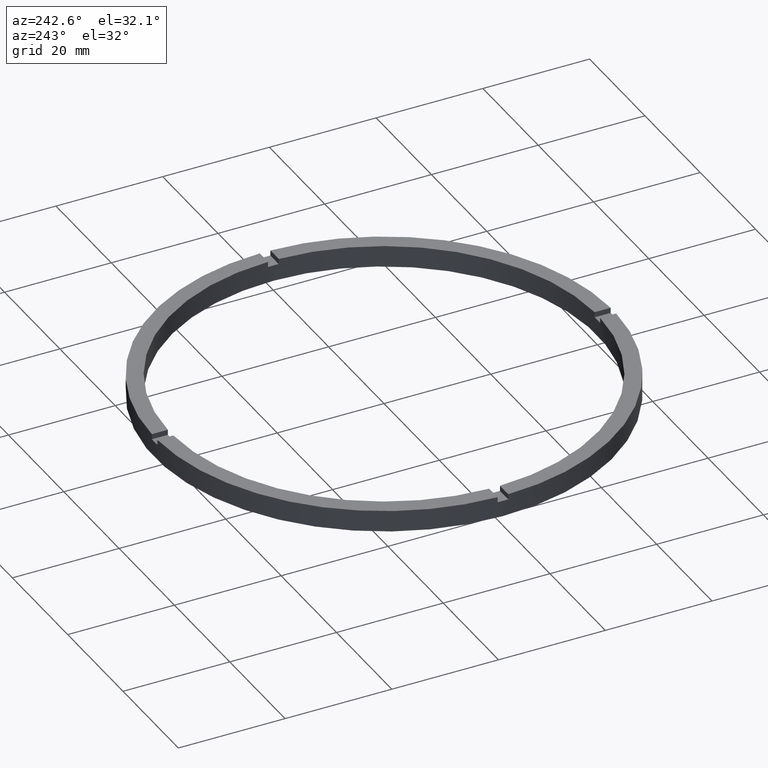
[diagram: clean part render]
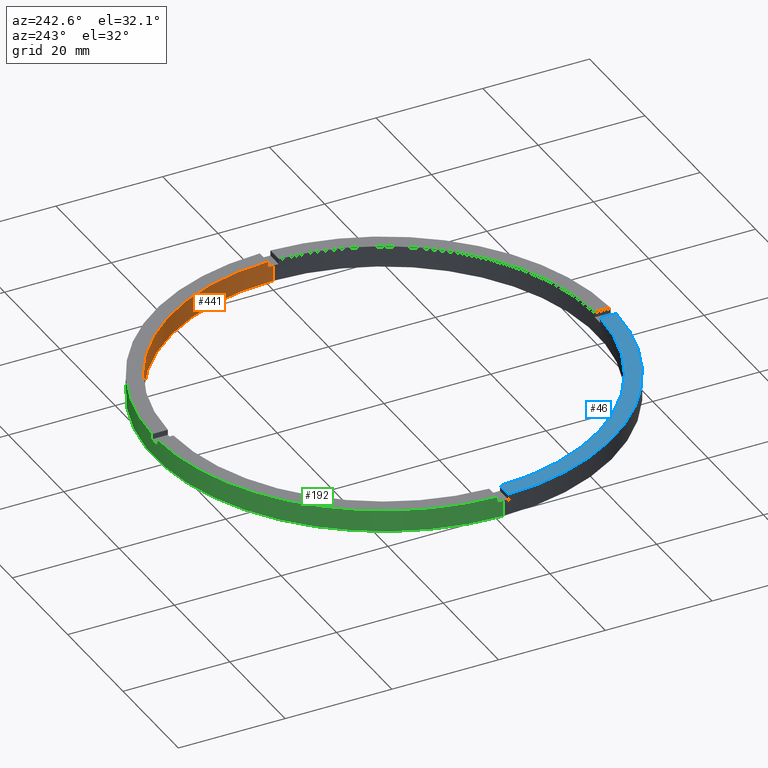
[diagram: same view with three faces highlighted in distinct colors, each labeled with its STEP entity id]
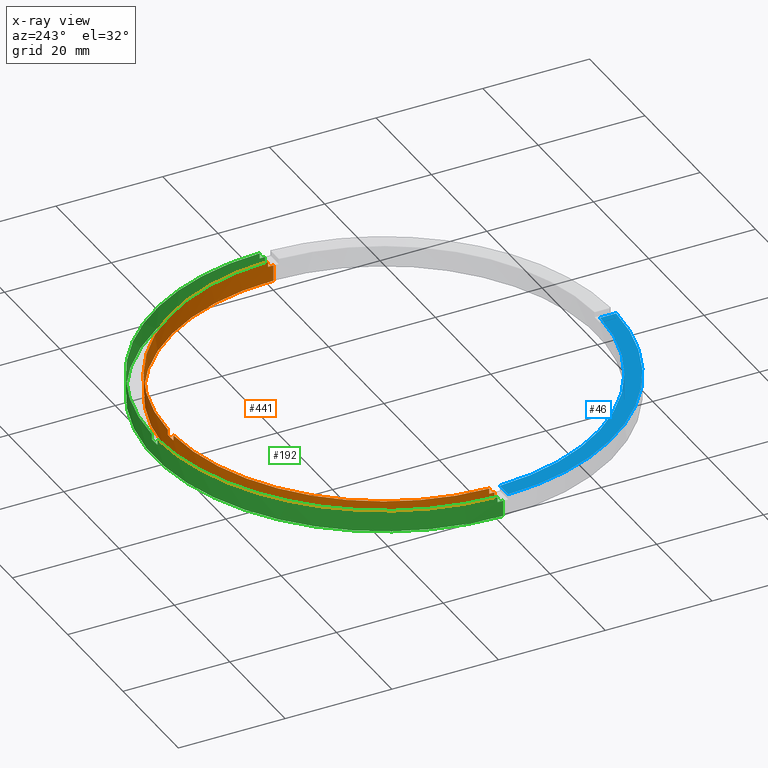
[diagram: x-ray of the same camera — body ghosted, the three highlighted faces saturated]
A machine part, auxiliary view with three faces highlighted in distinct colors.
The next image is the same camera in x-ray (body ghosted, the three faces saturated) — at least one of them is partly hidden behind the body in this view.
Their STEP definitions:

[orange] entity #441 — the highlighted cylindrical surface (partial cylindrical patch) has radius 40 mm, axis along (-0, -0, -1).
#8 = ORIENTED_EDGE ( 'NONE', *, *, #49, .T. ) ;
#19 = CIRCLE ( 'NONE', #274, 40.00000000000000000 ) ;
#32 = AXIS2_PLACEMENT_3D ( 'NONE', #557, #453, #159 ) ;
#41 = VERTEX_POINT ( 'NONE', #431 ) ;
#49 = EDGE_CURVE ( 'NONE', #522, #262, #579, .T. ) ;
#52 = DIRECTION ( 'NONE',  ( 0.000000000000000000, 0.000000000000000000, 1.000000000000000000 ) ) ;
#81 = LINE ( 'NONE', #83, #332 ) ;
#83 = CARTESIAN_POINT ( 'NONE',  ( -40.00000000000000000, 0.000000000000000000, 4.000000000000000000 ) ) ;
#89 = CARTESIAN_POINT ( 'NONE',  ( 39.98749804626441318, 0.9999999999998432365, 4.000000000000000000 ) ) ;
#93 = VERTEX_POINT ( 'NONE', #637 ) ;
#95 = ORIENTED_EDGE ( 'NONE', *, *, #485, .T. ) ;
#104 = DIRECTION ( 'NONE',  ( 0.000000000000000000, 0.000000000000000000, 1.000000000000000000 ) ) ;
#114 = EDGE_CURVE ( 'NONE', #209, #516, #81, .T. ) ;
#118 = DIRECTION ( 'NONE',  ( 0.000000000000000000, -0.000000000000000000, 1.000000000000000000 ) ) ;
#123 = DIRECTION ( 'NONE',  ( -0.000000000000000000, -0.000000000000000000, -1.000000000000000000 ) ) ;
#128 = LINE ( 'NONE', #518, #129 ) ;
#129 = VECTOR ( 'NONE', #104, 1000.000000000000000 ) ;
#142 = EDGE_CURVE ( 'NONE', #538, #178, #558, .T. ) ;
#151 = DIRECTION ( 'NONE',  ( 0.000000000000000000, 0.000000000000000000, 1.000000000000000000 ) ) ;
#155 = EDGE_CURVE ( 'NONE', #520, #209, #575, .T. ) ;
#156 = CARTESIAN_POINT ( 'NONE',  ( -39.98749804626441318, 0.9999999999999713562, 4.000000000000000000 ) ) ;
#159 = DIRECTION ( 'NONE',  ( 1.000000000000000000, 0.000000000000000000, 0.000000000000000000 ) ) ;
#169 = DIRECTION ( 'NONE',  ( -0.000000000000000000, -0.000000000000000000, -1.000000000000000000 ) ) ;
#175 = EDGE_CURVE ( 'NONE', #202, #517, #565, .T. ) ;
#178 = VERTEX_POINT ( 'NONE', #184 ) ;
#183 = VERTEX_POINT ( 'NONE', #503 ) ;
#184 = CARTESIAN_POINT ( 'NONE',  ( 40.00000000000000000, 4.898587196589413026E-15, 0.000000000000000000 ) ) ;
#186 = CARTESIAN_POINT ( 'NONE',  ( -40.00000000000000000, 0.000000000000000000, 0.000000000000000000 ) ) ;
#194 = CIRCLE ( 'NONE', #740, 40.00000000000000000 ) ;
#197 = ORIENTED_EDGE ( 'NONE', *, *, #114, .T. ) ;
#202 = VERTEX_POINT ( 'NONE', #648 ) ;
#209 = VERTEX_POINT ( 'NONE', #281 ) ;
#242 = EDGE_CURVE ( 'NONE', #202, #93, #19, .T. ) ;
#255 = AXIS2_PLACEMENT_3D ( 'NONE', #323, #427, #566 ) ;
#262 = VERTEX_POINT ( 'NONE', #156 ) ;
#274 = AXIS2_PLACEMENT_3D ( 'NONE', #721, #118, #589 ) ;
#281 = CARTESIAN_POINT ( 'NONE',  ( -40.00000000000000000, 0.000000000000000000, 3.000000000000000000 ) ) ;
#289 = CARTESIAN_POINT ( 'NONE',  ( 0.000000000000000000, 0.000000000000000000, 3.000000000000000000 ) ) ;
#297 = CYLINDRICAL_SURFACE ( 'NONE', #255, 40.00000000000000000 ) ;
#300 = LINE ( 'NONE', #89, #303 ) ;
#303 = VECTOR ( 'NONE', #169, 1000.000000000000000 ) ;
#307 = CARTESIAN_POINT ( 'NONE',  ( 0.000000000000000000, 0.000000000000000000, 4.000000000000000000 ) ) ;
#320 = AXIS2_PLACEMENT_3D ( 'NONE', #307, #419, #467 ) ;
#323 = CARTESIAN_POINT ( 'NONE',  ( 0.000000000000000000, 0.000000000000000000, 4.000000000000000000 ) ) ;
#332 = VECTOR ( 'NONE', #123, 1000.000000000000000 ) ;
#351 = EDGE_CURVE ( 'NONE', #41, #517, #592, .T. ) ;
#355 = CARTESIAN_POINT ( 'NONE',  ( 0.9999999999999740208, 39.98749804626441318, 4.000000000000000000 ) ) ;
#361 = DIRECTION ( 'NONE',  ( 1.000000000000000000, 0.000000000000000000, 0.000000000000000000 ) ) ;
#365 = CARTESIAN_POINT ( 'NONE',  ( -1.000000000000025979, 39.98749804626441318, 4.000000000000000000 ) ) ;
#374 = DIRECTION ( 'NONE',  ( 1.000000000000000000, 0.000000000000000000, 0.000000000000000000 ) ) ;
#376 = ORIENTED_EDGE ( 'NONE', *, *, #175, .F. ) ;
#379 = CARTESIAN_POINT ( 'NONE',  ( 0.000000000000000000, 0.000000000000000000, 0.000000000000000000 ) ) ;
#395 = DIRECTION ( 'NONE',  ( 1.000000000000000000, 0.000000000000000000, 0.000000000000000000 ) ) ;
#410 = CARTESIAN_POINT ( 'NONE',  ( 40.00000000000000000, 4.898587196589413026E-15, 3.000000000000000000 ) ) ;
#419 = DIRECTION ( 'NONE',  ( 0.000000000000000000, 0.000000000000000000, 1.000000000000000000 ) ) ;
#422 = DIRECTION ( 'NONE',  ( 0.000000000000000000, 0.000000000000000000, 1.000000000000000000 ) ) ;
#427 = DIRECTION ( 'NONE',  ( -0.000000000000000000, -0.000000000000000000, -1.000000000000000000 ) ) ;
#431 = CARTESIAN_POINT ( 'NONE',  ( 39.98749804626441318, 0.9999999999998432365, 4.000000000000000000 ) ) ;
#434 = AXIS2_PLACEMENT_3D ( 'NONE', #673, #580, #395 ) ;
#441 = ADVANCED_FACE ( 'NONE', ( #568 ), #297, .F. ) ;
#443 = EDGE_CURVE ( 'NONE', #41, #183, #300, .T. ) ;
#453 = DIRECTION ( 'NONE',  ( 0.000000000000000000, 0.000000000000000000, 1.000000000000000000 ) ) ;
#463 = ORIENTED_EDGE ( 'NONE', *, *, #242, .T. ) ;
#467 = DIRECTION ( 'NONE',  ( 1.000000000000000000, 0.000000000000000000, 0.000000000000000000 ) ) ;
#481 = ORIENTED_EDGE ( 'NONE', *, *, #142, .F. ) ;
#485 = EDGE_CURVE ( 'NONE', #538, #183, #194, .T. ) ;
#503 = CARTESIAN_POINT ( 'NONE',  ( 39.98749804626441318, 0.9999999999998432365, 3.000000000000000000 ) ) ;
#516 = VERTEX_POINT ( 'NONE', #186 ) ;
#517 = VERTEX_POINT ( 'NONE', #355 ) ;
#518 = CARTESIAN_POINT ( 'NONE',  ( -39.98749804626441318, 0.9999999999999713562, 4.000000000000000000 ) ) ;
#520 = VERTEX_POINT ( 'NONE', #618 ) ;
#522 = VERTEX_POINT ( 'NONE', #365 ) ;
#525 = CARTESIAN_POINT ( 'NONE',  ( 0.9999999999999740208, 39.98749804626441318, 4.000000000000000000 ) ) ;
#538 = VERTEX_POINT ( 'NONE', #410 ) ;
#539 = ORIENTED_EDGE ( 'NONE', *, *, #443, .F. ) ;
#553 = VECTOR ( 'NONE', #151, 1000.000000000000000 ) ;
#557 = CARTESIAN_POINT ( 'NONE',  ( 0.000000000000000000, 0.000000000000000000, 3.000000000000000000 ) ) ;
#558 = LINE ( 'NONE', #753, #563 ) ;
#563 = VECTOR ( 'NONE', #764, 1000.000000000000000 ) ;
#565 = LINE ( 'NONE', #525, #553 ) ;
#566 = DIRECTION ( 'NONE',  ( -1.000000000000000000, 0.000000000000000000, 0.000000000000000000 ) ) ;
#568 = FACE_OUTER_BOUND ( 'NONE', #629, .T. ) ;
#575 = CIRCLE ( 'NONE', #32, 40.00000000000000000 ) ;
#576 = CIRCLE ( 'NONE', #604, 40.00000000000000000 ) ;
#579 = CIRCLE ( 'NONE', #434, 40.00000000000000000 ) ;
#580 = DIRECTION ( 'NONE',  ( 0.000000000000000000, 0.000000000000000000, 1.000000000000000000 ) ) ;
#589 = DIRECTION ( 'NONE',  ( 1.000000000000000000, 0.000000000000000000, 0.000000000000000000 ) ) ;
#592 = CIRCLE ( 'NONE', #320, 40.00000000000000000 ) ;
#604 = AXIS2_PLACEMENT_3D ( 'NONE', #379, #422, #361 ) ;
#618 = CARTESIAN_POINT ( 'NONE',  ( -39.98749804626441318, 0.9999999999999713562, 3.000000000000000000 ) ) ;
#626 = ORIENTED_EDGE ( 'NONE', *, *, #666, .F. ) ;
#629 = EDGE_LOOP ( 'NONE', ( #481, #95, #539, #716, #376, #463, #712, #8, #626, #709, #197, #768 ) ) ;
#634 = EDGE_CURVE ( 'NONE', #178, #516, #576, .T. ) ;
#637 = CARTESIAN_POINT ( 'NONE',  ( -1.000000000000025979, 39.98749804626441318, 3.000000000000000000 ) ) ;
#642 = DIRECTION ( 'NONE',  ( -0.000000000000000000, -0.000000000000000000, -1.000000000000000000 ) ) ;
#648 = CARTESIAN_POINT ( 'NONE',  ( 0.9999999999999740208, 39.98749804626441318, 3.000000000000000000 ) ) ;
#666 = EDGE_CURVE ( 'NONE', #520, #262, #128, .T. ) ;
#673 = CARTESIAN_POINT ( 'NONE',  ( 0.000000000000000000, 0.000000000000000000, 4.000000000000000000 ) ) ;
#680 = EDGE_CURVE ( 'NONE', #522, #93, #733, .T. ) ;
#709 = ORIENTED_EDGE ( 'NONE', *, *, #155, .T. ) ;
#712 = ORIENTED_EDGE ( 'NONE', *, *, #680, .F. ) ;
#715 = CARTESIAN_POINT ( 'NONE',  ( -1.000000000000025979, 39.98749804626441318, 4.000000000000000000 ) ) ;
#716 = ORIENTED_EDGE ( 'NONE', *, *, #351, .T. ) ;
#721 = CARTESIAN_POINT ( 'NONE',  ( 0.000000000000000000, 0.000000000000000000, 3.000000000000000000 ) ) ;
#733 = LINE ( 'NONE', #715, #755 ) ;
#740 = AXIS2_PLACEMENT_3D ( 'NONE', #289, #52, #374 ) ;
#753 = CARTESIAN_POINT ( 'NONE',  ( 40.00000000000000000, 4.898587196589413026E-15, 4.000000000000000000 ) ) ;
#755 = VECTOR ( 'NONE', #642, 1000.000000000000000 ) ;
#764 = DIRECTION ( 'NONE',  ( -0.000000000000000000, -0.000000000000000000, -1.000000000000000000 ) ) ;
#768 = ORIENTED_EDGE ( 'NONE', *, *, #634, .F. ) ;

[blue] entity #46 — the highlighted planar face has unit normal (0, 0, 1).
#4 = VERTEX_POINT ( 'NONE', #494 ) ;
#44 = FACE_OUTER_BOUND ( 'NONE', #283, .T. ) ;
#46 = ADVANCED_FACE ( 'NONE', ( #44 ), #264, .T. ) ;
#47 = DIRECTION ( 'NONE',  ( 0.000000000000000000, 0.000000000000000000, 1.000000000000000000 ) ) ;
#62 = DIRECTION ( 'NONE',  ( 0.000000000000000000, 0.000000000000000000, 1.000000000000000000 ) ) ;
#85 = EDGE_CURVE ( 'NONE', #4, #773, #608, .T. ) ;
#97 = ORIENTED_EDGE ( 'NONE', *, *, #552, .F. ) ;
#112 = DIRECTION ( 'NONE',  ( 1.000000000000000000, 0.000000000000000000, 0.000000000000000000 ) ) ;
#137 = DIRECTION ( 'NONE',  ( 1.000000000000000000, 0.000000000000000000, -0.000000000000000000 ) ) ;
#154 = DIRECTION ( 'NONE',  ( 1.000000000000000000, 0.000000000000000000, 0.000000000000000000 ) ) ;
#177 = CARTESIAN_POINT ( 'NONE',  ( -1.000000000000158984, -39.98749804626440607, 4.000000000000000000 ) ) ;
#190 = VERTEX_POINT ( 'NONE', #688 ) ;
#239 = VERTEX_POINT ( 'NONE', #350 ) ;
#257 = AXIS2_PLACEMENT_3D ( 'NONE', #649, #47, #112 ) ;
#264 = PLANE ( 'NONE',  #744 ) ;
#283 = EDGE_LOOP ( 'NONE', ( #551, #746, #97, #492 ) ) ;
#339 = DIRECTION ( 'NONE',  ( 0.000000000000000000, 0.000000000000000000, 1.000000000000000000 ) ) ;
#350 = CARTESIAN_POINT ( 'NONE',  ( -42.98837052040933315, -1.000000000000029310, 4.000000000000000000 ) ) ;
#357 = CARTESIAN_POINT ( 'NONE',  ( -1.000000000000159872, -33.00000000000016342, 4.000000000000000000 ) ) ;
#465 = VECTOR ( 'NONE', #651, 1000.000000000000000 ) ;
#484 = LINE ( 'NONE', #357, #741 ) ;
#492 = ORIENTED_EDGE ( 'NONE', *, *, #627, .T. ) ;
#494 = CARTESIAN_POINT ( 'NONE',  ( -39.98749804626441318, -1.000000000000028644, 4.000000000000000000 ) ) ;
#531 = DIRECTION ( 'NONE',  ( 1.301042606982605074E-16, -1.000000000000000000, 0.000000000000000000 ) ) ;
#551 = ORIENTED_EDGE ( 'NONE', *, *, #706, .F. ) ;
#552 = EDGE_CURVE ( 'NONE', #239, #4, #707, .T. ) ;
#560 = CIRCLE ( 'NONE', #694, 42.99999999999998579 ) ;
#608 = CIRCLE ( 'NONE', #257, 40.00000000000000000 ) ;
#627 = EDGE_CURVE ( 'NONE', #239, #190, #560, .T. ) ;
#641 = CARTESIAN_POINT ( 'NONE',  ( 0.000000000000000000, 0.000000000000000000, 4.000000000000000000 ) ) ;
#649 = CARTESIAN_POINT ( 'NONE',  ( 0.000000000000000000, 0.000000000000000000, 4.000000000000000000 ) ) ;
#651 = DIRECTION ( 'NONE',  ( 1.000000000000000000, 1.951563910473907735E-16, -0.000000000000000000 ) ) ;
#658 = CARTESIAN_POINT ( 'NONE',  ( -33.00000000000017053, -1.000000000000027311, 4.000000000000000000 ) ) ;
#688 = CARTESIAN_POINT ( 'NONE',  ( -1.000000000000158540, -42.98837052040933315, 4.000000000000000000 ) ) ;
#691 = CARTESIAN_POINT ( 'NONE',  ( 0.000000000000000000, 0.000000000000000000, 4.000000000000000000 ) ) ;
#694 = AXIS2_PLACEMENT_3D ( 'NONE', #691, #62, #154 ) ;
#706 = EDGE_CURVE ( 'NONE', #773, #190, #484, .T. ) ;
#707 = LINE ( 'NONE', #658, #465 ) ;
#741 = VECTOR ( 'NONE', #531, 1000.000000000000000 ) ;
#744 = AXIS2_PLACEMENT_3D ( 'NONE', #641, #339, #137 ) ;
#746 = ORIENTED_EDGE ( 'NONE', *, *, #85, .F. ) ;
#773 = VERTEX_POINT ( 'NONE', #177 ) ;

[green] entity #192 — the highlighted cylindrical surface (partial cylindrical patch) has radius 43 mm, axis along (-0, -0, -1).
#7 = EDGE_CURVE ( 'NONE', #349, #636, #596, .T. ) ;
#14 = DIRECTION ( 'NONE',  ( 0.000000000000000000, 0.000000000000000000, 1.000000000000000000 ) ) ;
#27 = EDGE_CURVE ( 'NONE', #91, #546, #38, .T. ) ;
#29 = CIRCLE ( 'NONE', #515, 42.99999999999998579 ) ;
#36 = VECTOR ( 'NONE', #108, 1000.000000000000000 ) ;
#38 = LINE ( 'NONE', #647, #60 ) ;
#43 = VECTOR ( 'NONE', #657, 1000.000000000000000 ) ;
#48 = CIRCLE ( 'NONE', #403, 42.99999999999998579 ) ;
#51 = CYLINDRICAL_SURFACE ( 'NONE', #437, 42.99999999999998579 ) ;
#59 = LINE ( 'NONE', #625, #586 ) ;
#60 = VECTOR ( 'NONE', #173, 1000.000000000000000 ) ;
#63 = CARTESIAN_POINT ( 'NONE',  ( 42.98837052040934026, 0.9999999999998434586, 4.000000000000000000 ) ) ;
#65 = ORIENTED_EDGE ( 'NONE', *, *, #116, .F. ) ;
#75 = EDGE_CURVE ( 'NONE', #499, #636, #582, .T. ) ;
#79 = VECTOR ( 'NONE', #153, 1000.000000000000000 ) ;
#88 = VERTEX_POINT ( 'NONE', #478 ) ;
#91 = VERTEX_POINT ( 'NONE', #571 ) ;
#100 = AXIS2_PLACEMENT_3D ( 'NONE', #527, #424, #420 ) ;
#105 = VERTEX_POINT ( 'NONE', #611 ) ;
#108 = DIRECTION ( 'NONE',  ( -0.000000000000000000, -0.000000000000000000, -1.000000000000000000 ) ) ;
#111 = CARTESIAN_POINT ( 'NONE',  ( 0.000000000000000000, 0.000000000000000000, 4.000000000000000000 ) ) ;
#116 = EDGE_CURVE ( 'NONE', #91, #88, #605, .T. ) ;
#126 = AXIS2_PLACEMENT_3D ( 'NONE', #717, #185, #277 ) ;
#153 = DIRECTION ( 'NONE',  ( 0.000000000000000000, 0.000000000000000000, 1.000000000000000000 ) ) ;
#161 = CARTESIAN_POINT ( 'NONE',  ( -42.99999999999998579, 0.000000000000000000, 3.000000000000000000 ) ) ;
#171 = AXIS2_PLACEMENT_3D ( 'NONE', #685, #747, #537 ) ;
#173 = DIRECTION ( 'NONE',  ( -0.000000000000000000, -0.000000000000000000, -1.000000000000000000 ) ) ;
#181 = DIRECTION ( 'NONE',  ( -1.000000000000000000, 0.000000000000000000, 0.000000000000000000 ) ) ;
#185 = DIRECTION ( 'NONE',  ( 0.000000000000000000, 0.000000000000000000, 1.000000000000000000 ) ) ;
#189 = DIRECTION ( 'NONE',  ( -0.000000000000000000, -0.000000000000000000, -1.000000000000000000 ) ) ;
#192 = ADVANCED_FACE ( 'NONE', ( #555 ), #51, .T. ) ;
#193 = CARTESIAN_POINT ( 'NONE',  ( 0.9999999999999740208, 42.98837052040934026, 3.000000000000000000 ) ) ;
#198 = DIRECTION ( 'NONE',  ( 0.000000000000000000, 0.000000000000000000, 1.000000000000000000 ) ) ;
#204 = CARTESIAN_POINT ( 'NONE',  ( 0.000000000000000000, 0.000000000000000000, 4.000000000000000000 ) ) ;
#214 = ORIENTED_EDGE ( 'NONE', *, *, #75, .T. ) ;
#217 = ORIENTED_EDGE ( 'NONE', *, *, #724, .T. ) ;
#224 = ORIENTED_EDGE ( 'NONE', *, *, #428, .F. ) ;
#228 = VERTEX_POINT ( 'NONE', #63 ) ;
#235 = ORIENTED_EDGE ( 'NONE', *, *, #7, .F. ) ;
#241 = VERTEX_POINT ( 'NONE', #446 ) ;
#252 = VECTOR ( 'NONE', #14, 1000.000000000000000 ) ;
#266 = ORIENTED_EDGE ( 'NONE', *, *, #27, .T. ) ;
#277 = DIRECTION ( 'NONE',  ( 1.000000000000000000, 0.000000000000000000, 0.000000000000000000 ) ) ;
#286 = VERTEX_POINT ( 'NONE', #377 ) ;
#290 = DIRECTION ( 'NONE',  ( 1.000000000000000000, 0.000000000000000000, 0.000000000000000000 ) ) ;
#298 = LINE ( 'NONE', #751, #43 ) ;
#299 = DIRECTION ( 'NONE',  ( 0.000000000000000000, 0.000000000000000000, 1.000000000000000000 ) ) ;
#306 = AXIS2_PLACEMENT_3D ( 'NONE', #204, #299, #414 ) ;
#309 = ORIENTED_EDGE ( 'NONE', *, *, #650, .F. ) ;
#310 = CIRCLE ( 'NONE', #306, 42.99999999999998579 ) ;
#336 = CARTESIAN_POINT ( 'NONE',  ( 0.000000000000000000, 0.000000000000000000, 3.000000000000000000 ) ) ;
#349 = VERTEX_POINT ( 'NONE', #161 ) ;
#367 = EDGE_CURVE ( 'NONE', #228, #408, #59, .T. ) ;
#377 = CARTESIAN_POINT ( 'NONE',  ( 42.99999999999998579, 5.265981236333616104E-15, 3.000000000000000000 ) ) ;
#403 = AXIS2_PLACEMENT_3D ( 'NONE', #609, #198, #290 ) ;
#404 = CARTESIAN_POINT ( 'NONE',  ( -42.99999999999998579, 0.000000000000000000, 0.000000000000000000 ) ) ;
#408 = VERTEX_POINT ( 'NONE', #697 ) ;
#413 = CARTESIAN_POINT ( 'NONE',  ( 42.99999999999998579, 5.265981236333616104E-15, 0.000000000000000000 ) ) ;
#414 = DIRECTION ( 'NONE',  ( 1.000000000000000000, 0.000000000000000000, 0.000000000000000000 ) ) ;
#420 = DIRECTION ( 'NONE',  ( 1.000000000000000000, 0.000000000000000000, 0.000000000000000000 ) ) ;
#424 = DIRECTION ( 'NONE',  ( 0.000000000000000000, 0.000000000000000000, 1.000000000000000000 ) ) ;
#426 = EDGE_CURVE ( 'NONE', #241, #88, #600, .T. ) ;
#428 = EDGE_CURVE ( 'NONE', #228, #105, #310, .T. ) ;
#437 = AXIS2_PLACEMENT_3D ( 'NONE', #111, #189, #181 ) ;
#439 = CIRCLE ( 'NONE', #171, 42.99999999999998579 ) ;
#446 = CARTESIAN_POINT ( 'NONE',  ( -42.98837052040934026, 0.9999999999999708011, 3.000000000000000000 ) ) ;
#448 = CARTESIAN_POINT ( 'NONE',  ( -1.000000000000025979, 42.98837052040933315, 3.000000000000000000 ) ) ;
#449 = CARTESIAN_POINT ( 'NONE',  ( -42.98837052040934026, 0.9999999999999708011, 4.000000000000000000 ) ) ;
#462 = VERTEX_POINT ( 'NONE', #193 ) ;
#478 = CARTESIAN_POINT ( 'NONE',  ( -42.98837052040934026, 0.9999999999999708011, 4.000000000000000000 ) ) ;
#483 = ORIENTED_EDGE ( 'NONE', *, *, #639, .F. ) ;
#495 = ORIENTED_EDGE ( 'NONE', *, *, #426, .T. ) ;
#496 = ORIENTED_EDGE ( 'NONE', *, *, #569, .F. ) ;
#499 = VERTEX_POINT ( 'NONE', #413 ) ;
#500 = ORIENTED_EDGE ( 'NONE', *, *, #367, .T. ) ;
#515 = AXIS2_PLACEMENT_3D ( 'NONE', #336, #587, #725 ) ;
#527 = CARTESIAN_POINT ( 'NONE',  ( 0.000000000000000000, 0.000000000000000000, 4.000000000000000000 ) ) ;
#537 = DIRECTION ( 'NONE',  ( 1.000000000000000000, 0.000000000000000000, 0.000000000000000000 ) ) ;
#546 = VERTEX_POINT ( 'NONE', #448 ) ;
#555 = FACE_OUTER_BOUND ( 'NONE', #585, .T. ) ;
#567 = CARTESIAN_POINT ( 'NONE',  ( 0.9999999999999740208, 42.98837052040934026, 4.000000000000000000 ) ) ;
#569 = EDGE_CURVE ( 'NONE', #462, #546, #439, .T. ) ;
#571 = CARTESIAN_POINT ( 'NONE',  ( -1.000000000000025979, 42.98837052040933315, 4.000000000000000000 ) ) ;
#582 = CIRCLE ( 'NONE', #126, 42.99999999999998579 ) ;
#585 = EDGE_LOOP ( 'NONE', ( #309, #761, #214, #235, #483, #495, #65, #266, #496, #217, #224, #500 ) ) ;
#586 = VECTOR ( 'NONE', #692, 1000.000000000000000 ) ;
#587 = DIRECTION ( 'NONE',  ( 0.000000000000000000, 0.000000000000000000, 1.000000000000000000 ) ) ;
#596 = LINE ( 'NONE', #734, #36 ) ;
#600 = LINE ( 'NONE', #449, #79 ) ;
#605 = CIRCLE ( 'NONE', #100, 42.99999999999998579 ) ;
#609 = CARTESIAN_POINT ( 'NONE',  ( 0.000000000000000000, 0.000000000000000000, 3.000000000000000000 ) ) ;
#611 = CARTESIAN_POINT ( 'NONE',  ( 0.9999999999999740208, 42.98837052040934026, 4.000000000000000000 ) ) ;
#614 = EDGE_CURVE ( 'NONE', #286, #499, #298, .T. ) ;
#625 = CARTESIAN_POINT ( 'NONE',  ( 42.98837052040934026, 0.9999999999998434586, 4.000000000000000000 ) ) ;
#636 = VERTEX_POINT ( 'NONE', #404 ) ;
#639 = EDGE_CURVE ( 'NONE', #241, #349, #48, .T. ) ;
#647 = CARTESIAN_POINT ( 'NONE',  ( -1.000000000000025979, 42.98837052040933315, 4.000000000000000000 ) ) ;
#650 = EDGE_CURVE ( 'NONE', #286, #408, #29, .T. ) ;
#657 = DIRECTION ( 'NONE',  ( -0.000000000000000000, -0.000000000000000000, -1.000000000000000000 ) ) ;
#685 = CARTESIAN_POINT ( 'NONE',  ( 0.000000000000000000, 0.000000000000000000, 3.000000000000000000 ) ) ;
#692 = DIRECTION ( 'NONE',  ( -0.000000000000000000, -0.000000000000000000, -1.000000000000000000 ) ) ;
#697 = CARTESIAN_POINT ( 'NONE',  ( 42.98837052040934026, 0.9999999999998434586, 3.000000000000000000 ) ) ;
#717 = CARTESIAN_POINT ( 'NONE',  ( 0.000000000000000000, 0.000000000000000000, 0.000000000000000000 ) ) ;
#724 = EDGE_CURVE ( 'NONE', #462, #105, #774, .T. ) ;
#725 = DIRECTION ( 'NONE',  ( 1.000000000000000000, 0.000000000000000000, 0.000000000000000000 ) ) ;
#734 = CARTESIAN_POINT ( 'NONE',  ( -42.99999999999998579, 0.000000000000000000, 4.000000000000000000 ) ) ;
#747 = DIRECTION ( 'NONE',  ( 0.000000000000000000, -0.000000000000000000, 1.000000000000000000 ) ) ;
#751 = CARTESIAN_POINT ( 'NONE',  ( 42.99999999999998579, 5.265981236333616104E-15, 4.000000000000000000 ) ) ;
#761 = ORIENTED_EDGE ( 'NONE', *, *, #614, .T. ) ;
#774 = LINE ( 'NONE', #567, #252 ) ;